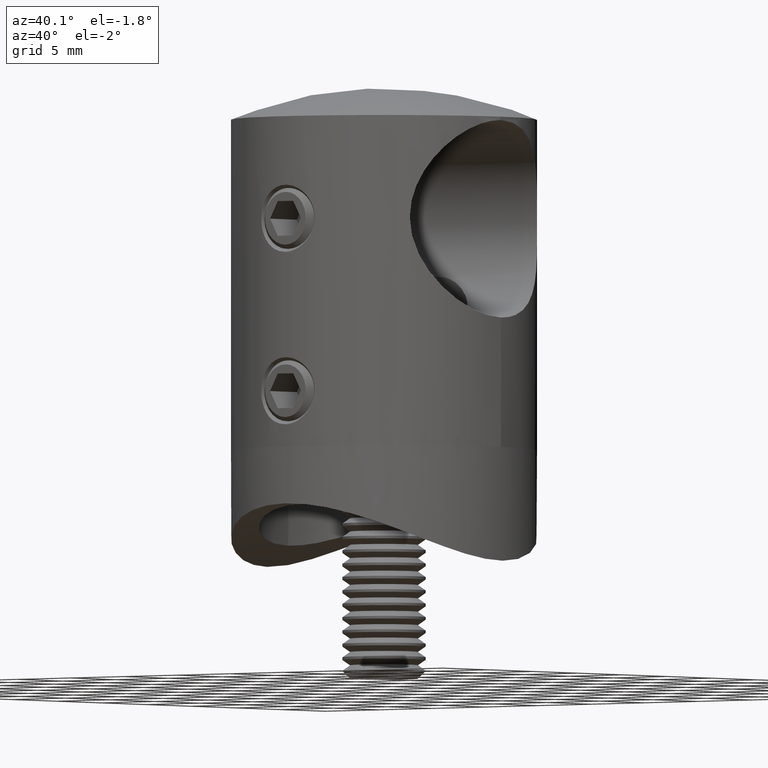
[diagram: clean part render]
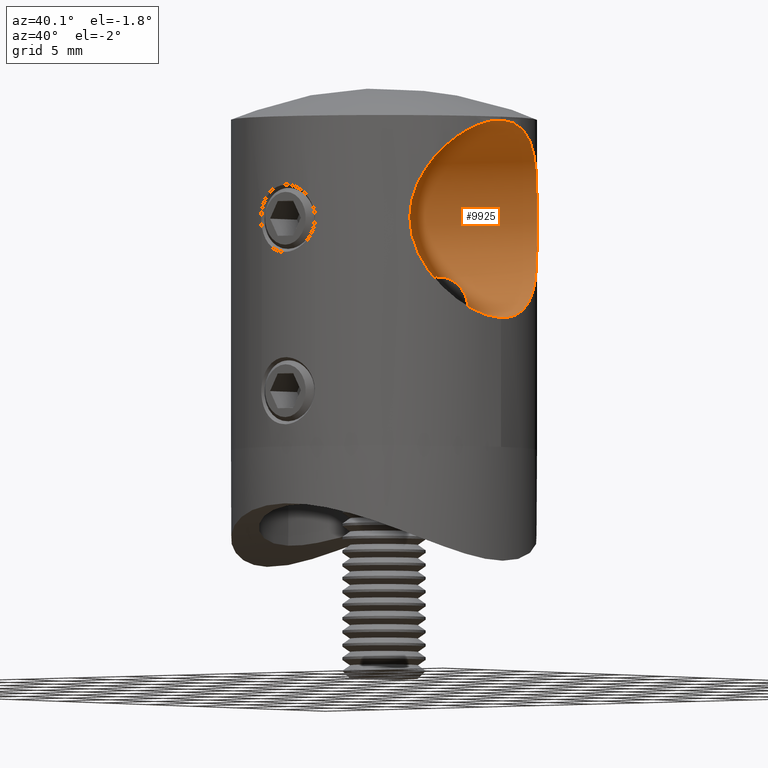
[diagram: same view with one face highlighted and labeled with its STEP entity id]
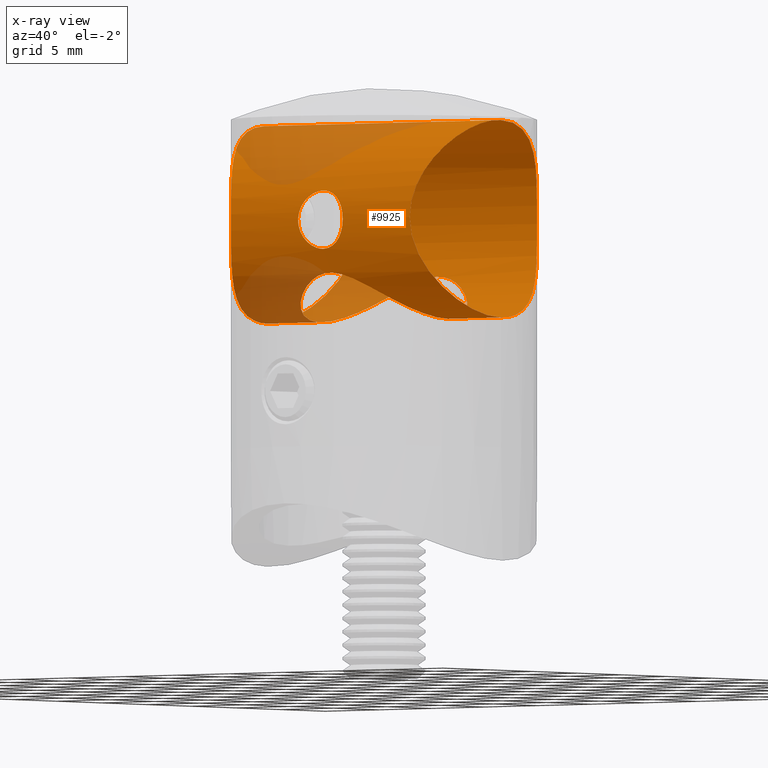
[diagram: x-ray of the same camera — body ghosted, the highlighted face saturated]
A machine part, auxiliary view. The second image highlights one B-rep face of the part: STEP entity #9925.
The next image is the same camera in x-ray: the body ghosted, the highlighted face saturated — about 22% of this face is hidden behind the body in this view.
In plain terms, the highlighted cylindrical surface (bore or boss wall) has radius 7.1 mm, axis along (1, 0, 0).
Its self-contained STEP definition (entity closure, byte-faithful):
#145 = CARTESIAN_POINT ( 'NONE',  ( 8.441615027164326400, -7.053644850158703700, 17.33924664838004000 ) ) ;
#216 = CARTESIAN_POINT ( 'NONE',  ( 0.8403754529403169000, -5.944502367105699600, 12.51740611922530300 ) ) ;
#220 = CARTESIAN_POINT ( 'NONE',  ( 10.84297000111511100, -1.910690892895690100, 23.25460155054432200 ) ) ;
#299 = CARTESIAN_POINT ( 'NONE',  ( 5.824379174162317900, 1.455723984333428600, 9.447817276396453000 ) ) ;
#303 = CARTESIAN_POINT ( 'NONE',  ( 9.611617826107234900, -5.361562930642149300, 21.07654444607350500 ) ) ;
#383 = CARTESIAN_POINT ( 'NONE',  ( 8.604462001010002600, -6.853532578562345100, 18.26917815072582100 ) ) ;
#447 = DIRECTION ( 'NONE',  ( 0.0000000000000000000, 0.0000000000000000000, -1.000000000000000000 ) ) ;
#456 = CARTESIAN_POINT ( 'NONE',  ( 9.454023007717232500, 5.631244608318725800, 20.74775790618729200 ) ) ;
#510 = EDGE_CURVE ( 'NONE', #9156, #9156, #18685, .T. ) ;
#595 = CARTESIAN_POINT ( 'NONE',  ( -1.631362855885414300, -5.788242461569518000, 12.28559420233721300 ) ) ;
#872 = CARTESIAN_POINT ( 'NONE',  ( -9.941559082019182400, 4.721753626895441000, 21.72179177554297200 ) ) ;
#954 = CARTESIAN_POINT ( 'NONE',  ( -10.52162891456611900, 3.215649772253206700, 22.73424068538132700 ) ) ;
#973 = CARTESIAN_POINT ( 'NONE',  ( -5.329813343587205500, -2.784648955960873400, 9.857183176020043900 ) ) ;
#1118 = CARTESIAN_POINT ( 'NONE',  ( -6.000000000000000000, -5.149960319306146100E-016, 9.299999999999998900 ) ) ;
#1178 = CARTESIAN_POINT ( 'NONE',  ( -8.716197689742701400, 6.713987155183081900, 14.04568685242710500 ) ) ;
#1258 = CARTESIAN_POINT ( 'NONE',  ( -8.713338137559071900, -6.714570131918350200, 14.08064251900250200 ) ) ;
#1327 = CARTESIAN_POINT ( 'NONE',  ( -9.126122353799150500, -6.148371097858401400, 12.82074655299189400 ) ) ;
#1399 = CARTESIAN_POINT ( 'NONE',  ( -10.83727758145454500, -1.898942890585058700, 9.554592817602502600 ) ) ;
#1410 = CARTESIAN_POINT ( 'NONE',  ( 0.5460881874451504200, -6.802950190174097900, 14.36759762511172600 ) ) ;
#1490 = ORIENTED_EDGE ( 'NONE', *, *, #4411, .T. ) ;
#1495 = CARTESIAN_POINT ( 'NONE',  ( 2.100089081531273400, -7.100026348053460400, 16.53647861869632900 ) ) ;
#1571 = CARTESIAN_POINT ( 'NONE',  ( -10.93554320940684800, 1.212055794307699500, 23.39982116040938800 ) ) ;
#1578 = CARTESIAN_POINT ( 'NONE',  ( -1.897353801849632800E-016, -6.782329983125268100, 14.30000000000000400 ) ) ;
#1738 = CARTESIAN_POINT ( 'NONE',  ( 2.099910032668056600, -7.099973389949184400, 16.26079361211436900 ) ) ;
#1779 = CARTESIAN_POINT ( 'NONE',  ( 11.00000000000000400, -4.065758146820641600E-016, 9.299999999999998900 ) ) ;
#1935 = CARTESIAN_POINT ( 'NONE',  ( 9.134031390889505900, 6.136687821570410200, 19.99930232546839500 ) ) ;
#2000 = CARTESIAN_POINT ( 'NONE',  ( -5.999999999999998200, 0.4255906106727202500, 9.300000000000000700 ) ) ;
#2008 = CARTESIAN_POINT ( 'NONE',  ( 0.2172863810251527700, -5.999785139815387000, 12.60360981548990500 ) ) ;
#2013 = CARTESIAN_POINT ( 'NONE',  ( 10.10591008084336000, 4.348277020147662600, 22.01730710083607100 ) ) ;
#2088 = CARTESIAN_POINT ( 'NONE',  ( 8.400921406657444000, 7.101022558136128800, 15.93882788113832800 ) ) ;
#2119 = B_SPLINE_CURVE_WITH_KNOTS ( 'NONE', 3,
 ( #13461, #11495, #9848, #18715, #13394, #11717, #17068, #20441, #9922, #6526, #7917, #2966, #11641, #1178, #22212, #16923, #9691, #2808, #20511, #4603, #16778, #8137, #15302, #2889, #15228, #15079, #22352, #11567, #20294, #872, #6233, #9773, #20368, #954, #2737, #13320, #4533, #1571, #5051, #11935, #6753, #4895, #13837, #3279, #15379, #22653, #8440, #13920, #3356, #8365, #20817, #22582, #6600, #12013, #10317, #10078, #8277, #4823, #17140, #15687, #17373, #20732, #3201, #5127, #18870, #20966, #22425, #1258, #20655, #4970, #1327, #15611, #10230, #12088, #8520, #11860, #10152, #17220, #17296, #19024, #13613, #1399, #22731, #6677, #19102, #3041 ),
 .UNSPECIFIED., .T., .F.,
 ( 4, 2, 2, 2, 2, 2, 2, 2, 2, 2, 2, 2, 2, 2, 2, 2, 2, 2, 2, 2, 2, 2, 2, 2, 2, 2, 2, 2, 2, 2, 2, 2, 2, 2, 2, 2, 2, 2, 2, 2, 2, 2, 4 ),
 ( 0.0000000000000000000, 0.001429294004371782500, 0.002858588008743564900, 0.004287882013115348000, 0.005717176017487131600, 0.007146470021858916000, 0.008575764026230701200, 0.01000505803060248700, 0.01071970503278837900, 0.01143435203497426500, 0.01286364603934605200, 0.01357829304153194300, 0.01429294004371783200, 0.01572223404808961700, 0.01715152805246140200, 0.01858082205683318800, 0.01929546905901908000, 0.02001011606120497700, 0.02143941006557676500, 0.02215405706776266500, 0.02286870406994855700, 0.02358335107213445400, 0.02429799807432034600, 0.02572729207869214500, 0.02644193908087803800, 0.02715658608306393400, 0.02787123308524983000, 0.02858588008743573000, 0.03001517409180752900, 0.03144446809617931800, 0.03287376210055111000, 0.03430305610492290200, 0.03573235010929469400, 0.03644699711148059700, 0.03716164411366650000, 0.03859093811803830000, 0.04002023212241010600, 0.04144952612678190500, 0.04216417312896780800, 0.04287882013115371100, 0.04359346713333961400, 0.04430811413552551700, 0.04573740813989731600 ),
 .UNSPECIFIED. ) ;
#2151 = AXIS2_PLACEMENT_3D ( 'NONE', #9271, #12598, #447 ) ;
#2155 = CARTESIAN_POINT ( 'NONE',  ( 5.828772570954779300, -1.438195329528195700, 9.444135390484151000 ) ) ;
#2159 = CARTESIAN_POINT ( 'NONE',  ( 8.775104742126355700, 6.634005485550293500, 13.85960298956172700 ) ) ;
#2230 = CARTESIAN_POINT ( 'NONE',  ( 8.971544570989790300, -6.368727316150223100, 19.57206776467770100 ) ) ;
#2304 = CARTESIAN_POINT ( 'NONE',  ( -2.696397146119860800, -5.373303209285173100, 11.75317120065864900 ) ) ;
#2737 = CARTESIAN_POINT ( 'NONE',  ( -10.58394417430352300, 3.004956304348640900, 22.83701482432169200 ) ) ;
#2808 = CARTESIAN_POINT ( 'NONE',  ( -8.413237320255293000, 7.086500040589212900, 15.90136674223512400 ) ) ;
#2861 = FACE_BOUND ( 'NONE', #7988, .T. ) ;
#2889 = CARTESIAN_POINT ( 'NONE',  ( -8.712531411531246700, 6.715614010298820900, 18.71630400190571200 ) ) ;
#2907 = CARTESIAN_POINT ( 'NONE',  ( -5.572422891737574900, -2.233472215406453900, 9.657613010733536300 ) ) ;
#2939 = CARTESIAN_POINT ( 'NONE',  ( 2.001897216983309600, 5.668783512326655200, 12.11861732169408900 ) ) ;
#2966 = CARTESIAN_POINT ( 'NONE',  ( -9.132219529114744100, 6.139339865191939100, 12.80533429294058900 ) ) ;
#3015 = CARTESIAN_POINT ( 'NONE',  ( 1.626502383520758800, 5.789314081546451400, 12.28716072661946700 ) ) ;
#3041 = CARTESIAN_POINT ( 'NONE',  ( -10.99999999999999600, 2.710505431213761100E-016, 9.299999999999995400 ) ) ;
#3042 = VERTEX_POINT ( 'NONE', #17723 ) ;
#3090 = CARTESIAN_POINT ( 'NONE',  ( 5.027575539599600200, 3.280322343229418600, 10.10063688166239100 ) ) ;
#3201 = CARTESIAN_POINT ( 'NONE',  ( -8.402678174434401000, -7.098943678384630500, 16.89213793340527300 ) ) ;
#3215 = CARTESIAN_POINT ( 'NONE',  ( -2.032668272943460900, -7.080330242912368500, 15.85475758280785800 ) ) ;
#3279 = CARTESIAN_POINT ( 'NONE',  ( -10.96270294519259100, -0.9359780770641063000, 23.44210052358779400 ) ) ;
#3287 = CARTESIAN_POINT ( 'NONE',  ( 0.6797862604579257800, -6.815154110500385400, 18.39164889179126700 ) ) ;
#3331 = CARTESIAN_POINT ( 'NONE',  ( 10.96821046489719200, -0.9576882426351975800, 9.348973725324684700 ) ) ;
#3338 = VERTEX_POINT ( 'NONE', #3385 ) ;
#3356 = CARTESIAN_POINT ( 'NONE',  ( -10.53058741645235900, -3.186281656805154800, 22.74910505009927800 ) ) ;
#3368 = CARTESIAN_POINT ( 'NONE',  ( -2.086526860941312100, -7.095979874710620200, 16.12534519864587400 ) ) ;
#3385 = CARTESIAN_POINT ( 'NONE',  ( 0.0000000000000000000, -6.782329983125268100, 14.30000000000000400 ) ) ;
#3412 = CARTESIAN_POINT ( 'NONE',  ( 9.132219529114749400, -6.139339865191940900, 12.80533429294058900 ) ) ;
#3448 = CARTESIAN_POINT ( 'NONE',  ( -0.9342772076473255800, -6.845222928990589900, 14.51428300145035300 ) ) ;
#3489 = CARTESIAN_POINT ( 'NONE',  ( 8.413237320255296600, -7.086500040589212900, 15.90136674223512400 ) ) ;
#3567 = CARTESIAN_POINT ( 'NONE',  ( 10.53371792439568500, -3.199456506150320800, 10.04470791799388100 ) ) ;
#3725 = CARTESIAN_POINT ( 'NONE',  ( 10.99297397562942900, 0.4598195259154076500, 23.48913258083436500 ) ) ;
#3798 = CARTESIAN_POINT ( 'NONE',  ( -0.4188305109936360000, -5.988974953983113600, 12.58636915842258300 ) ) ;
#3804 = CARTESIAN_POINT ( 'NONE',  ( 8.974584736475273800, 6.364495021462755800, 13.21915323638559100 ) ) ;
#3841 = CARTESIAN_POINT ( 'NONE',  ( -5.326490552797530100, 2.768939498764430200, 9.859487026903863700 ) ) ;
#3876 = CARTESIAN_POINT ( 'NONE',  ( 8.442684130846840800, 7.052366154554805500, 15.45217027337697100 ) ) ;
#3905 = VERTEX_POINT ( 'NONE', #19127 ) ;
#3952 = CARTESIAN_POINT ( 'NONE',  ( 9.866065930372878200, 4.867538550024849400, 21.57379312522551000 ) ) ;
#4024 = CARTESIAN_POINT ( 'NONE',  ( 2.003774538605403800, -5.658884263988764700, 12.11083033382254100 ) ) ;
#4028 = CARTESIAN_POINT ( 'NONE',  ( 10.76013234905316700, 2.327659393083309600, 23.12391534086663100 ) ) ;
#4054 = CARTESIAN_POINT ( 'NONE',  ( -3.638768708274211500, 4.784851395820308700, 11.14664390087054900 ) ) ;
#4347 = CARTESIAN_POINT ( 'NONE',  ( -0.8376258012268633600, 5.944932101896895000, 12.51806431799274900 ) ) ;
#4411 = EDGE_CURVE ( 'NONE', #3338, #3338, #16414, .T. ) ;
#4533 = CARTESIAN_POINT ( 'NONE',  ( -10.84297000111510400, 1.910690892895686300, 23.25460155054431900 ) ) ;
#4588 = ORIENTED_EDGE ( 'NONE', *, *, #510, .T. ) ;
#4603 = CARTESIAN_POINT ( 'NONE',  ( -8.400936357774282800, 7.101004865438452100, 16.86596985220173700 ) ) ;
#4713 = CARTESIAN_POINT ( 'NONE',  ( 4.453609379297916800, 4.037579987130033700, 10.55080833122428000 ) ) ;
#4788 = FACE_BOUND ( 'NONE', #15018, .T. ) ;
#4823 = CARTESIAN_POINT ( 'NONE',  ( -9.134031390889502300, -6.136687821570409300, 19.99930232546839900 ) ) ;
#4868 = CARTESIAN_POINT ( 'NONE',  ( 5.131682348192301300, 3.115122463272038900, 10.01713305262651200 ) ) ;
#4895 = CARTESIAN_POINT ( 'NONE',  ( -11.00035846530514000, -0.2214725248977521800, 23.50055536974437200 ) ) ;
#4970 = CARTESIAN_POINT ( 'NONE',  ( -8.974584736475275500, -6.364495021462750500, 13.21915323638558000 ) ) ;
#4980 = CARTESIAN_POINT ( 'NONE',  ( 1.833784230723152000, -7.025138138096716400, 15.34076852850498800 ) ) ;
#5051 = CARTESIAN_POINT ( 'NONE',  ( -10.95950930229003000, 0.9729361877379643100, 23.43713052271612400 ) ) ;
#5059 = CARTESIAN_POINT ( 'NONE',  ( -1.281792034622724500, -6.901481671827468700, 18.06904435979247500 ) ) ;
#5127 = CARTESIAN_POINT ( 'NONE',  ( -8.400921406657444000, -7.101022558136128800, 15.93882788113832500 ) ) ;
#5139 = CARTESIAN_POINT ( 'NONE',  ( -1.580948237789722400, -6.963506826189998800, 17.78902056964878400 ) ) ;
#5213 = CARTESIAN_POINT ( 'NONE',  ( 2.086262723297446400, -7.095902045785404500, 16.67651335550581800 ) ) ;
#5342 = CARTESIAN_POINT ( 'NONE',  ( 10.84731057724800800, -1.885380813810667400, 9.538551356808243400 ) ) ;
#5423 = CARTESIAN_POINT ( 'NONE',  ( 9.451433528349369300, -5.635541834417797900, 12.05790560231922000 ) ) ;
#5500 = CARTESIAN_POINT ( 'NONE',  ( 10.93957804708263900, 1.175367915195186400, 23.40611913367371600 ) ) ;
#5564 = CARTESIAN_POINT ( 'NONE',  ( -5.955259686151070000, 0.8403312590452684000, 9.337922232234763700 ) ) ;
#5579 = CARTESIAN_POINT ( 'NONE',  ( 9.941566712052258800, 4.721521006677412500, 11.07832343451946900 ) ) ;
#5653 = CARTESIAN_POINT ( 'NONE',  ( 10.59253960969031100, 2.974511089570728300, 22.85112724400619300 ) ) ;
#5661 = CARTESIAN_POINT ( 'NONE',  ( -5.134128972121322600, 3.111148864082782200, 10.01516729705678800 ) ) ;
#5729 = CARTESIAN_POINT ( 'NONE',  ( 5.956842814989179200, -0.8294610519354083100, 9.336585283979914600 ) ) ;
#5734 = CARTESIAN_POINT ( 'NONE',  ( 10.74873748235941500, 2.348874627246540800, 9.695645327102669200 ) ) ;
#5803 = CARTESIAN_POINT ( 'NONE',  ( 10.58647855960269600, 2.995887424184126200, 9.958827788779814200 ) ) ;
#5878 = EDGE_CURVE ( 'NONE', #3905, #3905, #13019, .T. ) ;
#5904 = EDGE_LOOP ( 'NONE', ( #14355 ) ) ;
#5978 = CARTESIAN_POINT ( 'NONE',  ( -5.029821966736994600, 3.276829155650979900, 10.09883970379459100 ) ) ;
#6096 = CARTESIAN_POINT ( 'NONE',  ( -4.699507218552371400, -3.749794225432207200, 10.36034332612697800 ) ) ;
#6233 = CARTESIAN_POINT ( 'NONE',  ( -10.10047049893865000, 4.375164704028947900, 22.01011196334505400 ) ) ;
#6460 = CYLINDRICAL_SURFACE ( 'NONE', #2151, 7.099999999999998800 ) ;
#6489 = ORIENTED_EDGE ( 'NONE', *, *, #16466, .F. ) ;
#6497 = CARTESIAN_POINT ( 'NONE',  ( 4.696780111688950000, 3.753448882018302500, 10.36248536409851600 ) ) ;
#6526 = CARTESIAN_POINT ( 'NONE',  ( -9.620235205234212800, 5.345870137422466000, 11.70599883665757400 ) ) ;
#6570 = CARTESIAN_POINT ( 'NONE',  ( 1.036256247114738500, 5.913255437989581000, 12.46950241941940100 ) ) ;
#6600 = CARTESIAN_POINT ( 'NONE',  ( -10.10591008084336200, -4.348277020147667000, 22.01730710083607100 ) ) ;
#6677 = CARTESIAN_POINT ( 'NONE',  ( -10.96804341658750200, -0.9624892842059140600, 9.349217939927076100 ) ) ;
#6688 = CARTESIAN_POINT ( 'NONE',  ( -0.9316269468544713400, -6.844861605190451400, 18.28702208180636300 ) ) ;
#6753 = CARTESIAN_POINT ( 'NONE',  ( -10.99961482503125000, 0.2557540722021372500, 23.49940324905146500 ) ) ;
#6764 = CARTESIAN_POINT ( 'NONE',  ( 1.388825506137047600, -6.922427031916432000, 14.81895739106278500 ) ) ;
#6839 = CARTESIAN_POINT ( 'NONE',  ( -0.6811291103105884300, -6.815287221516177500, 14.40880296443675100 ) ) ;
#6922 = CARTESIAN_POINT ( 'NONE',  ( 1.991335394239305500, -7.068441622166320200, 15.71936255876320300 ) ) ;
#6964 = CARTESIAN_POINT ( 'NONE',  ( 8.485167145169288700, -7.000410335542114600, 15.19174385368667200 ) ) ;
#6999 = CARTESIAN_POINT ( 'NONE',  ( -1.991837313649667200, -7.068582600874120400, 15.72076281510273800 ) ) ;
#7276 = CARTESIAN_POINT ( 'NONE',  ( 9.941559082019178800, -4.721753626895443600, 21.72179177554297200 ) ) ;
#7352 = CARTESIAN_POINT ( 'NONE',  ( 10.32893578937957500, 3.788682685638860500, 22.40898187192343700 ) ) ;
#7421 = CARTESIAN_POINT ( 'NONE',  ( 5.578265404711226300, -2.218748832689772000, 9.652779712696055700 ) ) ;
#7424 = CARTESIAN_POINT ( 'NONE',  ( 9.445230156511863500, 5.645901492588390800, 12.07133753557889700 ) ) ;
#7488 = CARTESIAN_POINT ( 'NONE',  ( 3.932860729889278200, -4.546484401073164400, 10.93687559249450900 ) ) ;
#7494 = CARTESIAN_POINT ( 'NONE',  ( 8.713338137559064800, 6.714570131918344800, 14.08064251900249500 ) ) ;
#7917 = CARTESIAN_POINT ( 'NONE',  ( -9.451433528349374700, 5.635541834417797900, 12.05790560231922000 ) ) ;
#7929 = CARTESIAN_POINT ( 'NONE',  ( -5.646715179192989700, 2.038767760432293600, 9.596017525992774500 ) ) ;
#7965 = CARTESIAN_POINT ( 'NONE',  ( -1.633339635944446100, 5.787447737784170900, 12.28450020611923900 ) ) ;
#7988 = EDGE_LOOP ( 'NONE', ( #1490 ) ) ;
#8137 = CARTESIAN_POINT ( 'NONE',  ( -8.556951803790923300, 6.912471939353778800, 18.03836936382260000 ) ) ;
#8277 = CARTESIAN_POINT ( 'NONE',  ( -9.454023007717237800, -5.631244608318725800, 20.74775790618729600 ) ) ;
#8365 = CARTESIAN_POINT ( 'NONE',  ( -10.39889520333792000, -3.592859680259353100, 22.52820406413297100 ) ) ;
#8440 = CARTESIAN_POINT ( 'NONE',  ( -10.76013234905316700, -2.327659393083311400, 23.12391534086663500 ) ) ;
#8451 = CARTESIAN_POINT ( 'NONE',  ( -1.820435298009177100, -7.022007560448674500, 17.45573579861382300 ) ) ;
#8488 = CARTESIAN_POINT ( 'NONE',  ( 5.770617233778939000, 1.655923579157723400, 9.492844721344067000 ) ) ;
#8520 = CARTESIAN_POINT ( 'NONE',  ( -10.10047034617905800, -4.375483649562109000, 10.78982942695773400 ) ) ;
#8530 = CARTESIAN_POINT ( 'NONE',  ( 0.1395805940375214000, -6.782329983125270800, 14.30000000000000400 ) ) ;
#8608 = CARTESIAN_POINT ( 'NONE',  ( 1.678602553536196800, -6.984398384501091100, 17.69130925742408100 ) ) ;
#8691 = CARTESIAN_POINT ( 'NONE',  ( 1.387721061360572800, -6.922196061172670900, 17.98209569515187300 ) ) ;
#8770 = CARTESIAN_POINT ( 'NONE',  ( -1.387046703861992000, -6.922061004247118500, 17.98268029455838500 ) ) ;
#8968 = CARTESIAN_POINT ( 'NONE',  ( 10.99148700237106600, -0.4946336514024511400, 23.48682921834958400 ) ) ;
#9050 = CARTESIAN_POINT ( 'NONE',  ( 9.125703618000468300, -6.149007665515014800, 19.97822596878964800 ) ) ;
#9119 = CARTESIAN_POINT ( 'NONE',  ( 6.000900904544517200, -0.4114947982178308600, 9.299238672725383700 ) ) ;
#9124 = CARTESIAN_POINT ( 'NONE',  ( 8.712531411531246700, -6.715614010298820000, 18.71630400190571900 ) ) ;
#9156 = VERTEX_POINT ( 'NONE', #22678 ) ;
#9197 = CARTESIAN_POINT ( 'NONE',  ( 5.775187955432036400, -1.639870668147696200, 9.489023694791937300 ) ) ;
#9202 = CARTESIAN_POINT ( 'NONE',  ( 10.10047034617905700, 4.375483649562105400, 10.78982942695773600 ) ) ;
#9271 = CARTESIAN_POINT ( 'NONE',  ( -11.00000000000000000, 0.0000000000000000000, 16.39999999999999900 ) ) ;
#9283 = CARTESIAN_POINT ( 'NONE',  ( 10.39889520333791500, 3.592859680259352700, 22.52820406413297500 ) ) ;
#9416 = CARTESIAN_POINT ( 'NONE',  ( 11.00000000000000400, -4.065758146820641600E-016, 9.299999999999998900 ) ) ;
#9488 = CARTESIAN_POINT ( 'NONE',  ( -3.026219811695017600, -5.193944002147429900, 11.55074824867313100 ) ) ;
#9564 = CARTESIAN_POINT ( 'NONE',  ( -3.921573392429202400, -4.556114701658164500, 10.94499866620583400 ) ) ;
#9638 = CARTESIAN_POINT ( 'NONE',  ( 10.87554067984692500, 1.666944937178387300, 9.494294178244365100 ) ) ;
#9691 = CARTESIAN_POINT ( 'NONE',  ( -8.454743453844088200, 7.036928176547486500, 15.42595698804817600 ) ) ;
#9709 = CARTESIAN_POINT ( 'NONE',  ( -5.824010817262433200, -1.457282579998576000, 9.448126169380884700 ) ) ;
#9773 = CARTESIAN_POINT ( 'NONE',  ( -10.31976075114465800, 3.813519458579155000, 22.39319822350306000 ) ) ;
#9848 = CARTESIAN_POINT ( 'NONE',  ( -10.96821046489719000, 0.9576882426351973600, 9.348973725324683000 ) ) ;
#9922 = CARTESIAN_POINT ( 'NONE',  ( -9.946385993569125000, 4.711332995782086600, 11.06939817182897000 ) ) ;
#9925 = ADVANCED_FACE ( 'NONE', ( #2861, #4788, #12828, #15845 ), #6460, .F. ) ;
#9966 = CARTESIAN_POINT ( 'NONE',  ( -1.041978792573833100, 5.912264170079763100, 12.46800243502809400 ) ) ;
#10078 = CARTESIAN_POINT ( 'NONE',  ( -9.620087015600834200, -5.346277183801666900, 21.09378180451514600 ) ) ;
#10122 = CARTESIAN_POINT ( 'NONE',  ( 3.635589828323202400, 4.787358991253966200, 11.14888961510043500 ) ) ;
#10152 = CARTESIAN_POINT ( 'NONE',  ( -10.39262641175012400, -3.610959546615189400, 10.28242976620969400 ) ) ;
#10200 = CARTESIAN_POINT ( 'NONE',  ( 5.571905937862744000, 2.234603813979926900, 9.658037442074350700 ) ) ;
#10230 = CARTESIAN_POINT ( 'NONE',  ( -9.614416560844219400, -5.356351696933844100, 11.71785320789334200 ) ) ;
#10237 = CARTESIAN_POINT ( 'NONE',  ( -0.5470709807960405500, -6.803021818836578300, 14.36783572103256100 ) ) ;
#10317 = CARTESIAN_POINT ( 'NONE',  ( -9.866065930372879900, -4.867538550024850300, 21.57379312522552100 ) ) ;
#10324 = CARTESIAN_POINT ( 'NONE',  ( 0.2778081737557168700, -6.786669186077234400, 18.48612787744976100 ) ) ;
#10366 = CARTESIAN_POINT ( 'NONE',  ( 8.716197689742696000, -6.713987155183075700, 14.04568685242709100 ) ) ;
#10407 = CARTESIAN_POINT ( 'NONE',  ( -1.897353801849632800E-016, -6.782329983125268100, 14.30000000000000400 ) ) ;
#10482 = CARTESIAN_POINT ( 'NONE',  ( 0.1384375310246126500, -6.782348432365522800, 18.49994041483422400 ) ) ;
#10526 = CARTESIAN_POINT ( 'NONE',  ( 8.454743453844093500, -7.036928176547490000, 15.42595698804817400 ) ) ;
#10562 = CARTESIAN_POINT ( 'NONE',  ( -0.2741545567685156300, -6.782293266518073500, 18.50011858293871100 ) ) ;
#10757 = CARTESIAN_POINT ( 'NONE',  ( 10.38970443803621400, -3.619270667396483600, 22.51260078479329600 ) ) ;
#10834 = CARTESIAN_POINT ( 'NONE',  ( 3.032278631375847000, -5.190424719863007600, 11.54695414397451200 ) ) ;
#10839 = CARTESIAN_POINT ( 'NONE',  ( 10.52162891456611900, -3.215649772253206300, 22.73424068538132300 ) ) ;
#10906 = CARTESIAN_POINT ( 'NONE',  ( -6.000000000000000000, -5.149960319306146100E-016, 9.299999999999998900 ) ) ;
#10913 = CARTESIAN_POINT ( 'NONE',  ( 8.602017511315835900, 6.857174581406583900, 18.30214852131759100 ) ) ;
#10989 = CARTESIAN_POINT ( 'NONE',  ( 4.705776500241733600, -3.741935864694066800, 10.35545543142753100 ) ) ;
#10995 = CARTESIAN_POINT ( 'NONE',  ( 10.31976075114465600, -3.813519458579155000, 22.39319822350305600 ) ) ;
#11066 = CARTESIAN_POINT ( 'NONE',  ( 2.708719751215448400, -5.367198580856435100, 11.74603633967606000 ) ) ;
#11072 = CARTESIAN_POINT ( 'NONE',  ( 10.75343564665797500, -2.358425003356712700, 23.11323472417504000 ) ) ;
#11220 = CARTESIAN_POINT ( 'NONE',  ( -1.034907088547860800, -5.913564171330446800, 12.46995162154507300 ) ) ;
#11293 = CARTESIAN_POINT ( 'NONE',  ( 10.96804341658750400, 0.9624892842059139500, 9.349217939927076100 ) ) ;
#11391 = CARTESIAN_POINT ( 'NONE',  ( -0.4212014941561665900, 5.988858320278230200, 12.58618060796797300 ) ) ;
#11495 = CARTESIAN_POINT ( 'NONE',  ( -10.99999999999999500, 0.4841043843129387300, 9.299999999999995400 ) ) ;
#11567 = CARTESIAN_POINT ( 'NONE',  ( -9.445165846722382200, 5.646025497822180700, 20.72855546715352300 ) ) ;
#11614 = CARTESIAN_POINT ( 'NONE',  ( 0.2058670067223432000, 6.000114889573026700, 12.60413101400458500 ) ) ;
#11641 = CARTESIAN_POINT ( 'NONE',  ( -8.981137454154914900, 6.355225858788589500, 13.20132555570548200 ) ) ;
#11658 = CARTESIAN_POINT ( 'NONE',  ( -5.645251958818044500, -2.042697817941950600, 9.597231322444939000 ) ) ;
#11717 = CARTESIAN_POINT ( 'NONE',  ( -10.53371792439568500, 3.199456506150320000, 10.04470791799387700 ) ) ;
#11860 = CARTESIAN_POINT ( 'NONE',  ( -10.32148190190005700, -3.808950110484047100, 10.40382481806966600 ) ) ;
#11935 = CARTESIAN_POINT ( 'NONE',  ( -10.99148700237107000, 0.4946336514024489700, 23.48682921834959500 ) ) ;
#12013 = CARTESIAN_POINT ( 'NONE',  ( -9.947855748482227900, -4.698627205197779800, 21.72771569207881400 ) ) ;
#12023 = CARTESIAN_POINT ( 'NONE',  ( -2.031955190868507200, -7.080125291145908100, 16.94772396257849300 ) ) ;
#12088 = CARTESIAN_POINT ( 'NONE',  ( -9.941566712052260600, -4.721521006677416900, 11.07832343451947400 ) ) ;
#12096 = CARTESIAN_POINT ( 'NONE',  ( 2.032107468005845100, -7.080168537428638100, 15.85255404476935600 ) ) ;
#12172 = CARTESIAN_POINT ( 'NONE',  ( 1.833352615866390900, -7.025011679384225400, 17.46077143229711100 ) ) ;
#12256 = CARTESIAN_POINT ( 'NONE',  ( -0.2769015917512465700, -6.786640825994242100, 14.31378241230066600 ) ) ;
#12528 = CARTESIAN_POINT ( 'NONE',  ( 10.99961482503124400, -0.2557540722021420200, 23.49940324905145100 ) ) ;
#12598 = DIRECTION ( 'NONE',  ( 1.000000000000000000, -0.0000000000000000000, -0.0000000000000000000 ) ) ;
#12606 = CARTESIAN_POINT ( 'NONE',  ( 0.4263398409215536400, -5.988453359129795000, 12.58554459967330700 ) ) ;
#12610 = CARTESIAN_POINT ( 'NONE',  ( 11.00035846530514200, 0.2214725248977498800, 23.50055536974437600 ) ) ;
#12680 = CARTESIAN_POINT ( 'NONE',  ( 10.10047049893863900, -4.375164704028945200, 22.01011196334505000 ) ) ;
#12751 = CARTESIAN_POINT ( 'NONE',  ( 8.402678174434404600, 7.098943678384629600, 16.89213793340527300 ) ) ;
#12826 = CARTESIAN_POINT ( 'NONE',  ( 8.558052539306178400, 6.911109365526332500, 14.75603232091404100 ) ) ;
#12828 = FACE_OUTER_BOUND ( 'NONE', #5904, .T. ) ;
#13019 = B_SPLINE_CURVE_WITH_KNOTS ( 'NONE', 3,
 ( #1779, #19398, #3331, #5342, #15660, #3567, #17674, #15740, #21248, #21011, #5423, #3412, #22858, #10366, #17512, #6964, #10526, #3489, #19723, #19571, #145, #16055, #383, #9124, #14582, #2230, #9050, #21488, #303, #7276, #12680, #10995, #10757, #10839, #18135, #11072, #220, #19640, #14436, #8968, #12528, #12610, #3725, #17984, #5500, #21637, #4028, #5653, #17833, #9283, #7352, #18058, #2013, #14287, #3952, #17909, #456, #1935, #14361, #21413, #10913, #16134, #12751, #2088, #3876, #12826, #16358, #7494, #2159, #3804, #16211, #7424, #19802, #5579, #9202, #16284, #21331, #21563, #5803, #14512, #5734, #19946, #9638, #11293, #18363, #9416 ),
 .UNSPECIFIED., .T., .F.,
 ( 4, 2, 2, 2, 2, 2, 2, 2, 2, 2, 2, 2, 2, 2, 2, 2, 2, 2, 2, 2, 2, 2, 2, 2, 2, 2, 2, 2, 2, 2, 2, 2, 2, 2, 2, 2, 2, 2, 2, 2, 2, 2, 4 ),
 ( 0.0000000000000000000, 0.001429294004371784200, 0.002858588008743568400, 0.004287882013115352400, 0.005717176017487137600, 0.007146470021858922900, 0.008575764026230708200, 0.01000505803060249300, 0.01071970503278838600, 0.01143435203497427400, 0.01286364603934605700, 0.01357829304153195000, 0.01429294004371784100, 0.01572223404808962800, 0.01715152805246140900, 0.01858082205683319500, 0.01929546905901909100, 0.02001011606120498700, 0.02143941006557678300, 0.02215405706776268200, 0.02286870406994858200, 0.02358335107213447800, 0.02429799807432037700, 0.02572729207869217300, 0.02644193908087807600, 0.02715658608306396900, 0.02787123308524986500, 0.02858588008743576100, 0.03001517409180755700, 0.03144446809617935200, 0.03287376210055114500, 0.03430305610492294400, 0.03573235010929473600, 0.03644699711148063200, 0.03716164411366652800, 0.03859093811803832700, 0.04002023212241012700, 0.04144952612678192600, 0.04216417312896782200, 0.04287882013115372500, 0.04359346713333962100, 0.04430811413552551700, 0.04573740813989731600 ),
 .UNSPECIFIED. ) ;
#13320 = CARTESIAN_POINT ( 'NONE',  ( -10.75343564665797100, 2.358425003356712700, 23.11323472417503300 ) ) ;
#13394 = CARTESIAN_POINT ( 'NONE',  ( -10.75664178787482500, 2.343158699880904600, 9.681676794799933800 ) ) ;
#13461 = CARTESIAN_POINT ( 'NONE',  ( -10.99999999999999600, 2.710505431213761100E-016, 9.299999999999995400 ) ) ;
#13613 = CARTESIAN_POINT ( 'NONE',  ( -10.74873748235941300, -2.348874627246540400, 9.695645327102667500 ) ) ;
#13768 = CARTESIAN_POINT ( 'NONE',  ( -2.100041072693855900, -7.100012148261071400, 16.26219526905271100 ) ) ;
#13803 = CARTESIAN_POINT ( 'NONE',  ( 0.8342265236424136800, 5.945427389359215600, 12.51882448798661500 ) ) ;
#13837 = CARTESIAN_POINT ( 'NONE',  ( -10.99297397562942500, -0.4598195259154094200, 23.48913258083435500 ) ) ;
#13848 = CARTESIAN_POINT ( 'NONE',  ( -1.389211259960197100, -6.922504623154175400, 14.81929497972524800 ) ) ;
#13920 = CARTESIAN_POINT ( 'NONE',  ( -10.59253960969030900, -2.974511089570729200, 22.85112724400618200 ) ) ;
#13928 = CARTESIAN_POINT ( 'NONE',  ( -1.668758992133207100, -6.984222367492751700, 17.68211004866472900 ) ) ;
#14010 = CARTESIAN_POINT ( 'NONE',  ( -1.054516017828585100, -6.862904813444905500, 18.22117979977822700 ) ) ;
#14287 = CARTESIAN_POINT ( 'NONE',  ( 9.947855748482229600, 4.698627205197778900, 21.72771569207881700 ) ) ;
#14355 = ORIENTED_EDGE ( 'NONE', *, *, #5878, .F. ) ;
#14356 = CARTESIAN_POINT ( 'NONE',  ( -0.2052537967127295000, -6.000208827554549100, 12.60427949096214900 ) ) ;
#14361 = CARTESIAN_POINT ( 'NONE',  ( 8.979158664259912800, 6.358026487253727800, 19.59329309121693200 ) ) ;
#14436 = CARTESIAN_POINT ( 'NONE',  ( 10.95950930229003000, -0.9729361877379636400, 23.43713052271612800 ) ) ;
#14507 = CARTESIAN_POINT ( 'NONE',  ( 4.463500492273321500, -4.026794914740838400, 10.54327980728964500 ) ) ;
#14512 = CARTESIAN_POINT ( 'NONE',  ( 10.69829764722810100, 2.568131071932642200, 9.776651623962862900 ) ) ;
#14577 = CARTESIAN_POINT ( 'NONE',  ( 2.185414661741644800, -5.591060595315315000, 12.02231899186302900 ) ) ;
#14582 = CARTESIAN_POINT ( 'NONE',  ( 8.773313068562657700, -6.636362158982227500, 18.93414140837189700 ) ) ;
#14726 = CARTESIAN_POINT ( 'NONE',  ( -2.000566358878304500, -5.669275014694742200, 12.11926103609897400 ) ) ;
#14864 = CARTESIAN_POINT ( 'NONE',  ( -0.8324479774664875800, -5.945609334726608400, 12.51910695405306100 ) ) ;
#15018 = EDGE_LOOP ( 'NONE', ( #4588 ) ) ;
#15079 = CARTESIAN_POINT ( 'NONE',  ( -8.971544570989790300, 6.368727316150223100, 19.57206776467770800 ) ) ;
#15097 = CARTESIAN_POINT ( 'NONE',  ( -5.953794273955252500, -0.8505479490576349800, 9.339160298830556400 ) ) ;
#15228 = CARTESIAN_POINT ( 'NONE',  ( -8.773313068562657700, 6.636362158982228400, 18.93414140837189700 ) ) ;
#15270 = CARTESIAN_POINT ( 'NONE',  ( 2.697075260187719700, 5.372939978994312900, 11.75275779307242100 ) ) ;
#15302 = CARTESIAN_POINT ( 'NONE',  ( -8.604462001010004400, 6.853532578562342400, 18.26917815072582800 ) ) ;
#15379 = CARTESIAN_POINT ( 'NONE',  ( -10.93957804708263700, -1.175367915195192100, 23.40611913367371600 ) ) ;
#15435 = EDGE_LOOP ( 'NONE', ( #6489 ) ) ;
#15544 = CARTESIAN_POINT ( 'NONE',  ( -1.992006816820355100, -7.068625278274701900, 17.07908079540799700 ) ) ;
#15611 = CARTESIAN_POINT ( 'NONE',  ( -9.445230156511863500, -5.645901492588399700, 12.07133753557890900 ) ) ;
#15623 = CARTESIAN_POINT ( 'NONE',  ( -1.054441921355176100, -6.862889578469284900, 14.57875496900574700 ) ) ;
#15660 = CARTESIAN_POINT ( 'NONE',  ( 10.75664178787483000, -2.343158699880905100, 9.681676794799932000 ) ) ;
#15687 = CARTESIAN_POINT ( 'NONE',  ( -8.713927950806921200, -6.716937605689044400, 18.74613954834619600 ) ) ;
#15697 = CARTESIAN_POINT ( 'NONE',  ( -1.677922849988367400, -6.984273363899496300, 15.10821052288890500 ) ) ;
#15740 = CARTESIAN_POINT ( 'NONE',  ( 10.10539096786581000, -4.364378087092130300, 10.78095930433928400 ) ) ;
#15777 = CARTESIAN_POINT ( 'NONE',  ( 0.9337493638820072400, -6.845144131998222500, 14.51399439818940200 ) ) ;
#15845 = FACE_OUTER_BOUND ( 'NONE', #15435, .T. ) ;
#16055 = CARTESIAN_POINT ( 'NONE',  ( 8.556951803790930500, -6.912471939353781500, 18.03836936382260000 ) ) ;
#16131 = CARTESIAN_POINT ( 'NONE',  ( 5.999071219142572400, 0.4373604266263141900, 9.300784884714337500 ) ) ;
#16134 = CARTESIAN_POINT ( 'NONE',  ( 8.444364125748995400, 7.050408712736896200, 17.36475345057839400 ) ) ;
#16211 = CARTESIAN_POINT ( 'NONE',  ( 9.126122353799150500, 6.148371097858402300, 12.82074655299189000 ) ) ;
#16284 = CARTESIAN_POINT ( 'NONE',  ( 10.32148190190005700, 3.808950110484045700, 10.40382481806966700 ) ) ;
#16358 = CARTESIAN_POINT ( 'NONE',  ( 8.605012383103654000, 6.852844332284524500, 14.52826397732347600 ) ) ;
#16414 = B_SPLINE_CURVE_WITH_KNOTS ( 'NONE', 3,
 ( #1578, #8530, #21047, #1410, #19273, #15777, #22739, #22588, #6764, #19112, #4980, #6922, #12096, #17555, #1738, #1495, #5213, #20973, #21131, #12172, #8608, #8691, #17466, #17304, #19033, #3287, #20902, #10324, #10482, #10562, #17230, #6688, #14010, #5059, #8770, #5139, #13928, #8451, #22818, #15544, #12023, #17382, #22663, #13768, #3368, #3215, #6999, #22895, #15697, #13848, #19357, #15623, #3448, #6839, #10237, #12256, #19198, #10407 ),
 .UNSPECIFIED., .T., .F.,
 ( 4, 2, 2, 2, 2, 2, 2, 2, 2, 2, 2, 2, 2, 2, 2, 2, 2, 2, 2, 2, 2, 2, 2, 2, 2, 2, 2, 2, 4 ),
 ( 0.0000000000000000000, 0.0004126049983607233100, 0.0008252099967214464100, 0.001237814995082169500, 0.001650419993442892600, 0.002475629990164336000, 0.002888234988525059900, 0.003300839986885783900, 0.003713444985246508300, 0.004126049983607232700, 0.004951259980328679700, 0.005363864978689402400, 0.005776469977050126800, 0.006189074975410849500, 0.006601679973771573000, 0.007426889970493019200, 0.007839494968853744400, 0.008252099967214468800, 0.008664704965575193200, 0.009077309963935919400, 0.009489914962296643700, 0.009902519960657371600, 0.01031512495901809800, 0.01072772995737882400, 0.01155293995410026900, 0.01196554495246099400, 0.01237814995082171600, 0.01279075494918243900, 0.01320335994754316300 ),
 .UNSPECIFIED. ) ;
#16466 = EDGE_CURVE ( 'NONE', #3042, #3042, #2119, .T. ) ;
#16570 = CARTESIAN_POINT ( 'NONE',  ( -3.637488176373556500, -4.785785245169409800, 11.14751902123303900 ) ) ;
#16651 = CARTESIAN_POINT ( 'NONE',  ( -4.451687214761059300, -4.039727712211218100, 10.55228072343118500 ) ) ;
#16753 = CARTESIAN_POINT ( 'NONE',  ( -2.703354948880914300, 5.369790747988596500, 11.74909260839773900 ) ) ;
#16778 = CARTESIAN_POINT ( 'NONE',  ( -8.441615027164317600, 7.053644850158699200, 17.33924664838002300 ) ) ;
#16923 = CARTESIAN_POINT ( 'NONE',  ( -8.485167145169281600, 7.000410335542112800, 15.19174385368666700 ) ) ;
#17068 = CARTESIAN_POINT ( 'NONE',  ( -10.40114453351063500, 3.603181246278877500, 10.26497764200933100 ) ) ;
#17140 = CARTESIAN_POINT ( 'NONE',  ( -8.979158664259912800, -6.358026487253732200, 19.59329309121691800 ) ) ;
#17220 = CARTESIAN_POINT ( 'NONE',  ( -10.52509504090270200, -3.204385582520144800, 10.05999941236710000 ) ) ;
#17230 = CARTESIAN_POINT ( 'NONE',  ( -0.5519051208141797500, -6.800103364420358800, 18.44463325780935400 ) ) ;
#17296 = CARTESIAN_POINT ( 'NONE',  ( -10.58647855960270200, -2.995887424184125300, 9.958827788779816000 ) ) ;
#17304 = CARTESIAN_POINT ( 'NONE',  ( 1.055744936456866300, -6.863097567920427800, 18.22045035942808500 ) ) ;
#17373 = CARTESIAN_POINT ( 'NONE',  ( -8.602017511315839500, -6.857174581406585600, 18.30214852131759400 ) ) ;
#17382 = CARTESIAN_POINT ( 'NONE',  ( -2.085966281830895500, -7.095814792507050100, 16.67854641973061900 ) ) ;
#17466 = CARTESIAN_POINT ( 'NONE',  ( 1.282551141199096900, -6.901626495669847600, 18.06844222321452200 ) ) ;
#17512 = CARTESIAN_POINT ( 'NONE',  ( 8.602152119893858600, -6.856982156598218300, 14.49886696194906400 ) ) ;
#17555 = CARTESIAN_POINT ( 'NONE',  ( 2.086380772200743500, -7.095936194997684700, 16.12400523770451600 ) ) ;
#17674 = CARTESIAN_POINT ( 'NONE',  ( 10.40114453351063000, -3.603181246278879300, 10.26497764200933300 ) ) ;
#17723 = CARTESIAN_POINT ( 'NONE',  ( -10.99999999999999800, 0.0000000000000000000, 9.299999999999998900 ) ) ;
#17833 = CARTESIAN_POINT ( 'NONE',  ( 10.53058741645235600, 3.186281656805152200, 22.74910505009927800 ) ) ;
#17909 = CARTESIAN_POINT ( 'NONE',  ( 9.620087015600832500, 5.346277183801667800, 21.09378180451515000 ) ) ;
#17979 = CARTESIAN_POINT ( 'NONE',  ( 5.953683116407369800, 0.8507394908683467700, 9.339252866557394800 ) ) ;
#17984 = CARTESIAN_POINT ( 'NONE',  ( 10.96270294519258900, 0.9359780770641037400, 23.44210052358779400 ) ) ;
#18058 = CARTESIAN_POINT ( 'NONE',  ( 10.18244583592515300, 4.166392664168421700, 22.15353385299223300 ) ) ;
#18128 = CARTESIAN_POINT ( 'NONE',  ( 1.631818150420095000, -5.777131904218781400, 12.27147792791003900 ) ) ;
#18135 = CARTESIAN_POINT ( 'NONE',  ( 10.58394417430352200, -3.004956304348640000, 22.83701482432169200 ) ) ;
#18159 = CARTESIAN_POINT ( 'NONE',  ( -3.026713845289945100, 5.193692702801088000, 11.55045267130890500 ) ) ;
#18363 = CARTESIAN_POINT ( 'NONE',  ( 11.00000000000000500, 0.4841043843129448900, 9.300000000000000700 ) ) ;
#18387 = CARTESIAN_POINT ( 'NONE',  ( -4.458271958745062800, 4.032493471753877400, 10.54725876868332800 ) ) ;
#18569 = CARTESIAN_POINT ( 'NONE',  ( -5.414767279929796100, 2.592301380474763700, 9.787312634040812800 ) ) ;
#18685 = B_SPLINE_CURVE_WITH_KNOTS ( 'NONE', 3,
 ( #10906, #2000, #5564, #19935, #21777, #7929, #20302, #18569, #3841, #5661, #5978, #20044, #18387, #20189, #4054, #18159, #16753, #20557, #7965, #9966, #4347, #11391, #22111, #11614, #20933, #13803, #6570, #3015, #2939, #15270, #18917, #10122, #19075, #4713, #6497, #3090, #4868, #18992, #20781, #10200, #22551, #8488, #299, #17979, #16131, #9119, #5729, #2155, #9197, #19637, #7421, #21408, #21559, #10989, #14507, #7488, #19870, #10834, #11066, #14577, #4024, #18128, #19940, #21326, #216, #12606, #2008, #14356, #3798, #14864, #11220, #595, #14726, #2304, #9488, #16570, #9564, #16651, #6096, #20530, #973, #2907, #11658, #18889, #9709, #15097, #22075, #1118 ),
 .UNSPECIFIED., .T., .F.,
 ( 4, 2, 2, 2, 2, 2, 2, 2, 2, 2, 2, 2, 2, 2, 2, 2, 2, 2, 2, 2, 2, 2, 2, 2, 2, 2, 2, 2, 2, 2, 2, 2, 2, 2, 2, 2, 2, 2, 2, 2, 2, 2, 2, 4 ),
 ( 0.0000000000000000000, 0.001255468896717148700, 0.001883203345075723400, 0.002510937793434298300, 0.003138672241792873400, 0.003766406690151448100, 0.005021875586868598300, 0.006277344483585747600, 0.007532813380302897000, 0.008788282277020047200, 0.009416016725378622800, 0.01004375117373719800, 0.01067148562209577200, 0.01129922007045434800, 0.01255468896717149700, 0.01381015786388865000, 0.01506562676060579900, 0.01632109565732295000, 0.01694883010568152400, 0.01757656455404010100, 0.01820429900239867500, 0.01883203345075724600, 0.02008750234747439700, 0.02134297124419154400, 0.02197070569255011800, 0.02259844014090869500, 0.02385390903762584600, 0.02510937793434299800, 0.02636484683106015600, 0.02762031572777730700, 0.02824805017613588700, 0.02887578462449446500, 0.02950351907285304200, 0.03013125352121161900, 0.03075898796957020000, 0.03138672241792878100, 0.03264219131464593500, 0.03389766021136308300, 0.03515312910808023700, 0.03640859800479739200, 0.03766406690151454700, 0.03829180134987312400, 0.03891953579823170100, 0.04017500469494885600 ),
 .UNSPECIFIED. ) ;
#18715 = CARTESIAN_POINT ( 'NONE',  ( -10.84731057724800600, 1.885380813810666700, 9.538551356808239800 ) ) ;
#18870 = CARTESIAN_POINT ( 'NONE',  ( -8.442684130846844300, -7.052366154554801100, 15.45217027337697100 ) ) ;
#18889 = CARTESIAN_POINT ( 'NONE',  ( -5.770779943530155400, -1.655168540455579800, 9.492707248245865900 ) ) ;
#18917 = CARTESIAN_POINT ( 'NONE',  ( 3.021195086839681300, 5.196989489906929500, 11.55394318777243800 ) ) ;
#18992 = CARTESIAN_POINT ( 'NONE',  ( 5.323422327721976500, 2.774766008989168100, 9.861984091147121500 ) ) ;
#19024 = CARTESIAN_POINT ( 'NONE',  ( -10.69829764722809700, -2.568131071932639600, 9.776651623962857600 ) ) ;
#19033 = CARTESIAN_POINT ( 'NONE',  ( 0.9328229039679636300, -6.845025548537425800, 18.28642945744427800 ) ) ;
#19075 = CARTESIAN_POINT ( 'NONE',  ( 3.924215882971286500, 4.553813606163434900, 10.94308906331897200 ) ) ;
#19102 = CARTESIAN_POINT ( 'NONE',  ( -10.99999999999999800, -0.4841043843129450600, 9.299999999999995400 ) ) ;
#19112 = CARTESIAN_POINT ( 'NONE',  ( 1.677576361987590500, -6.984189384111904700, 15.10776719559211200 ) ) ;
#19127 = CARTESIAN_POINT ( 'NONE',  ( 11.00000000000000000, 0.0000000000000000000, 9.299999999999998900 ) ) ;
#19198 = CARTESIAN_POINT ( 'NONE',  ( -0.1395805940375217700, -6.782329983125265500, 14.30000000000000200 ) ) ;
#19273 = CARTESIAN_POINT ( 'NONE',  ( 0.6798632605222658700, -6.815154023665761500, 14.40834467048059300 ) ) ;
#19357 = CARTESIAN_POINT ( 'NONE',  ( -1.282197196202732300, -6.901553104244091400, 14.73124250459143300 ) ) ;
#19398 = CARTESIAN_POINT ( 'NONE',  ( 11.00000000000000000, -0.4841043843129388400, 9.299999999999998900 ) ) ;
#19571 = CARTESIAN_POINT ( 'NONE',  ( 8.400936357774289900, -7.101004865438448600, 16.86596985220172600 ) ) ;
#19637 = CARTESIAN_POINT ( 'NONE',  ( 5.649880896837491800, -2.029979699496828000, 9.593389116525813200 ) ) ;
#19640 = CARTESIAN_POINT ( 'NONE',  ( 10.93554320940685000, -1.212055794307701500, 23.39982116040939200 ) ) ;
#19723 = CARTESIAN_POINT ( 'NONE',  ( 8.402230374133905500, -7.099473585173072400, 16.14441378369492600 ) ) ;
#19802 = CARTESIAN_POINT ( 'NONE',  ( 9.614416560844226500, 5.356351696933844900, 11.71785320789334300 ) ) ;
#19870 = CARTESIAN_POINT ( 'NONE',  ( 3.643421681895576000, -4.781286533848056100, 11.14339825224562300 ) ) ;
#19935 = CARTESIAN_POINT ( 'NONE',  ( -5.826429792328103700, 1.447596115523148000, 9.446098919164480600 ) ) ;
#19940 = CARTESIAN_POINT ( 'NONE',  ( 1.440833190072401600, -5.827924969118562600, 12.34403964979529900 ) ) ;
#19946 = CARTESIAN_POINT ( 'NONE',  ( 10.83727758145454200, 1.898942890585056900, 9.554592817602499000 ) ) ;
#20044 = CARTESIAN_POINT ( 'NONE',  ( -4.700813520777003900, 3.748229658446419400, 10.35932983827607300 ) ) ;
#20189 = CARTESIAN_POINT ( 'NONE',  ( -3.928439217802486700, 4.550226122941760200, 10.94005258719552600 ) ) ;
#20294 = CARTESIAN_POINT ( 'NONE',  ( -9.611617826107233100, 5.361562930642147500, 21.07654444607351300 ) ) ;
#20302 = CARTESIAN_POINT ( 'NONE',  ( -5.574876951691186900, 2.227213082871074300, 9.655581379346656900 ) ) ;
#20368 = CARTESIAN_POINT ( 'NONE',  ( -10.38970443803621700, 3.619270667396481400, 22.51260078479329600 ) ) ;
#20441 = CARTESIAN_POINT ( 'NONE',  ( -10.10539096786581200, 4.364378087092132000, 10.78095930433928700 ) ) ;
#20511 = CARTESIAN_POINT ( 'NONE',  ( -8.402230374133903700, 7.099473585173075900, 16.14441378369493300 ) ) ;
#20530 = CARTESIAN_POINT ( 'NONE',  ( -5.137652430859843000, -3.122635478244380400, 10.01348630774558400 ) ) ;
#20557 = CARTESIAN_POINT ( 'NONE',  ( -2.008318929482300100, 5.666518837373256900, 12.11559146344112600 ) ) ;
#20655 = CARTESIAN_POINT ( 'NONE',  ( -8.775104742126355700, -6.634005485550294300, 13.85960298956172900 ) ) ;
#20732 = CARTESIAN_POINT ( 'NONE',  ( -8.444364125748993600, -7.050408712736898800, 17.36475345057839100 ) ) ;
#20781 = CARTESIAN_POINT ( 'NONE',  ( 5.411619010786369100, 2.598840062016002600, 9.789890797423566900 ) ) ;
#20817 = CARTESIAN_POINT ( 'NONE',  ( -10.32893578937957300, -3.788682685638863100, 22.40898187192343400 ) ) ;
#20902 = CARTESIAN_POINT ( 'NONE',  ( 0.5488557814347468900, -6.803156909013575900, 18.43171460438325600 ) ) ;
#20933 = CARTESIAN_POINT ( 'NONE',  ( 0.4167959053649906700, 5.989183743062342000, 12.58669326056336000 ) ) ;
#20966 = CARTESIAN_POINT ( 'NONE',  ( -8.558052539306178400, -6.911109365526332500, 14.75603232091404500 ) ) ;
#20973 = CARTESIAN_POINT ( 'NONE',  ( 2.032309671876054500, -7.080227135845428100, 16.94650634396373000 ) ) ;
#21011 = CARTESIAN_POINT ( 'NONE',  ( 9.620235205234214600, -5.345870137422466900, 11.70599883665757100 ) ) ;
#21047 = CARTESIAN_POINT ( 'NONE',  ( 0.2766625995010874000, -6.786638429700330400, 14.31377625170358700 ) ) ;
#21131 = CARTESIAN_POINT ( 'NONE',  ( 1.992398480494622600, -7.068737760408323500, 17.07782944487765100 ) ) ;
#21248 = CARTESIAN_POINT ( 'NONE',  ( 9.946385993569125000, -4.711332995782090200, 11.06939817182897200 ) ) ;
#21326 = CARTESIAN_POINT ( 'NONE',  ( 1.046060905831159000, -5.911553629003252700, 12.46692772765021200 ) ) ;
#21331 = CARTESIAN_POINT ( 'NONE',  ( 10.39262641175012400, 3.610959546615188500, 10.28242976620969500 ) ) ;
#21408 = CARTESIAN_POINT ( 'NONE',  ( 5.338414262100825700, -2.767832798064170200, 9.850159272636249200 ) ) ;
#21413 = CARTESIAN_POINT ( 'NONE',  ( 8.713927950806924700, 6.716937605689042600, 18.74613954834618600 ) ) ;
#21488 = CARTESIAN_POINT ( 'NONE',  ( 9.445165846722382200, -5.646025497822185100, 20.72855546715353000 ) ) ;
#21559 = CARTESIAN_POINT ( 'NONE',  ( 5.142996837162563400, -3.113840075958767400, 10.00917821885981600 ) ) ;
#21563 = CARTESIAN_POINT ( 'NONE',  ( 10.52509504090270200, 3.204385582520145300, 10.05999941236709800 ) ) ;
#21637 = CARTESIAN_POINT ( 'NONE',  ( 10.84870917457875600, 1.878547199976223300, 23.26366087614006200 ) ) ;
#21777 = CARTESIAN_POINT ( 'NONE',  ( -5.772621769369153300, 1.648879681393391000, 9.491168891638492900 ) ) ;
#22075 = CARTESIAN_POINT ( 'NONE',  ( -6.000000000000000900, -0.4255906106727212500, 9.299999999999998900 ) ) ;
#22111 = CARTESIAN_POINT ( 'NONE',  ( -0.2125103307182890100, 5.999883271520433300, 12.60376492099778300 ) ) ;
#22212 = CARTESIAN_POINT ( 'NONE',  ( -8.602152119893851500, 6.856982156598213900, 14.49886696194903600 ) ) ;
#22352 = CARTESIAN_POINT ( 'NONE',  ( -9.125703618000466500, 6.149007665515013900, 19.97822596878965500 ) ) ;
#22425 = CARTESIAN_POINT ( 'NONE',  ( -8.605012383103655800, -6.852844332284520900, 14.52826397732346700 ) ) ;
#22551 = CARTESIAN_POINT ( 'NONE',  ( 5.644002529706734900, 2.046299490167809300, 9.598269680440569800 ) ) ;
#22582 = CARTESIAN_POINT ( 'NONE',  ( -10.18244583592515300, -4.166392664168425200, 22.15353385299223300 ) ) ;
#22588 = CARTESIAN_POINT ( 'NONE',  ( 1.281695660772272900, -6.901460717921719600, 14.73086410931829700 ) ) ;
#22653 = CARTESIAN_POINT ( 'NONE',  ( -10.84870917457875400, -1.878547199976228700, 23.26366087614005500 ) ) ;
#22663 = CARTESIAN_POINT ( 'NONE',  ( -2.099958741597747600, -7.099987796811095800, 16.53905371070139200 ) ) ;
#22678 = CARTESIAN_POINT ( 'NONE',  ( -6.000000000000000900, 0.0000000000000000000, 9.299999999999998900 ) ) ;
#22731 = CARTESIAN_POINT ( 'NONE',  ( -10.87554067984692100, -1.666944937178388700, 9.494294178244363300 ) ) ;
#22739 = CARTESIAN_POINT ( 'NONE',  ( 1.054039452433828600, -6.862828530676040400, 14.57852828154888100 ) ) ;
#22818 = CARTESIAN_POINT ( 'NONE',  ( -1.885375750011310900, -7.039319135053910200, 17.33520060212768500 ) ) ;
#22858 = CARTESIAN_POINT ( 'NONE',  ( 8.981137454154916700, -6.355225858788585000, 13.20132555570547700 ) ) ;
#22895 = CARTESIAN_POINT ( 'NONE',  ( -1.834091644109289800, -7.025216620455511300, 15.34112135228550500 ) ) ;